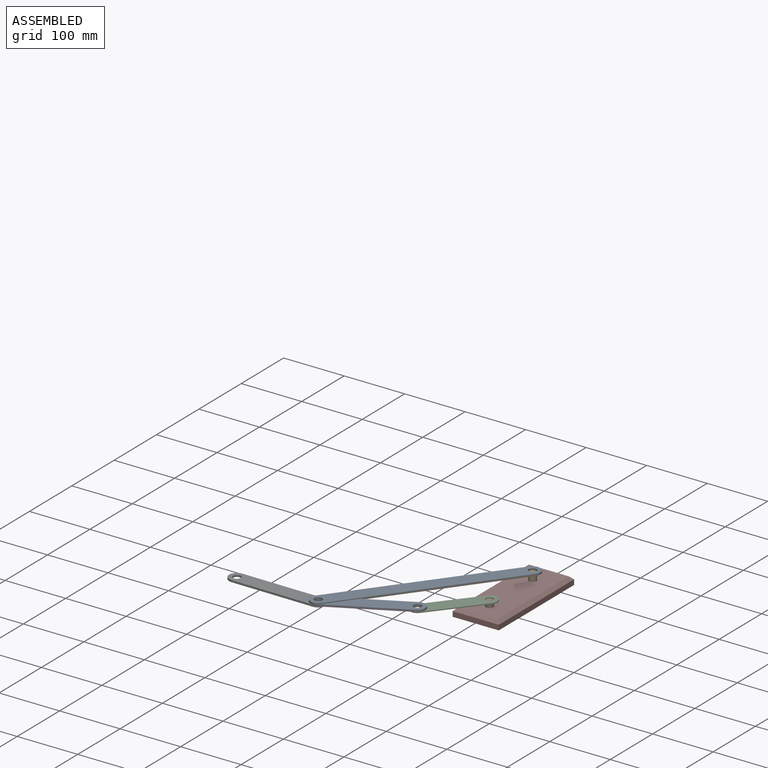
[diagram: assembled view]
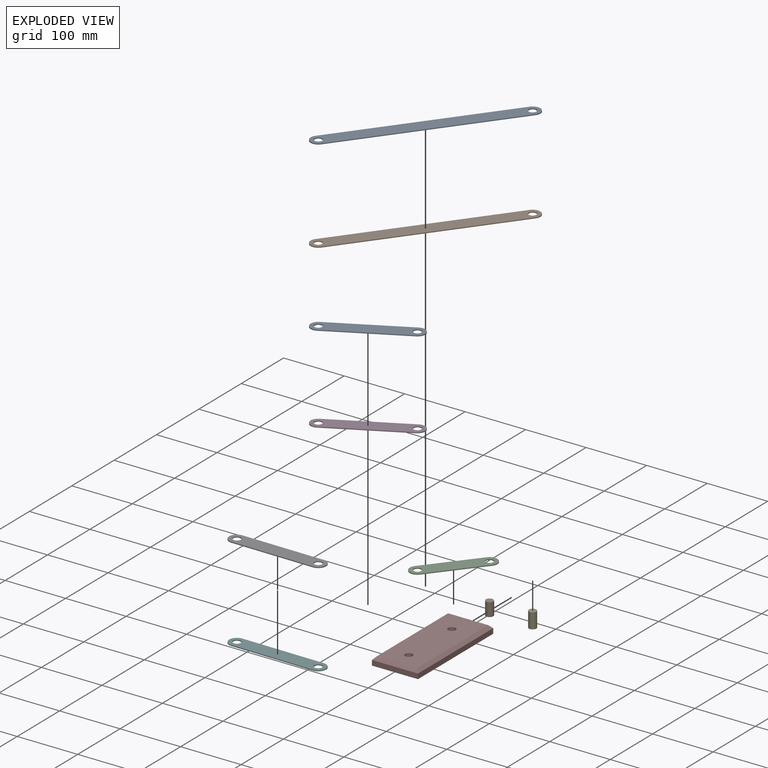
[diagram: exploded view]
GUIDED TOUR — MATED ASSEMBLY (Onshape document dc50b2e38b2e71167ab0dbe7, AutoMate assembly dc50b2e38b2e71167ab0dbe7_76890f38977dfb8077e2089f_dac8373fbd5c2e390059e451_default)

This assembly has 10 components, labeled P0..P9 below (a component is one placed occurrence of a part; the same part can appear more than once), held together by 12 mates. A mate is a constraint between two components; its type names the relative motion it leaves free:
  FASTENED — locks the two components together rigidly (no relative motion),
  REVOLUTE — leaves rotation about the listed axis free (a hinge).
Axis/direction vectors are unit vectors and 'through' points are millimeter coordinates, both in the assembly's world frame.

MATES
  1. REVOLUTE "Revolute 9": P0 <-> P6, axis (0.000, 0.000, -1.000) through (-184.07, -197.58, 25.40) mm
  2. FASTENED "Fastened 3": P9 <-> P7, direction (0.000, 0.000, -1.000) through (0.00, -56.24, 0.00) mm
  3. REVOLUTE "Revolute 4": P3 <-> P1, axis (0.000, 0.000, 1.000) through (-184.07, -197.58, 25.40) mm
  4. REVOLUTE "Revolute 2": P8 <-> P1, axis (0.000, 0.000, -1.000) through (0.00, 45.36, 26.99) mm
  5. REVOLUTE "Revolute 7": P3 <-> P0, axis (0.000, 0.000, 1.000) through (-63.76, -135.35, 25.40) mm
  6. REVOLUTE "Revolute 1": P4 <-> P1, axis (0.000, 0.000, 1.000) through (0.00, 45.36, 25.40) mm
  7. REVOLUTE "Revolute 10": P6 <-> P5, axis (0.000, 0.000, -1.000) through (-319.53, -196.35, 23.81) mm
  8. REVOLUTE "Revolute 5": P8 <-> P0, axis (0.000, 0.000, -1.000) through (-184.07, -197.58, 26.99) mm
  9. REVOLUTE "Revolute 6": P3 <-> P2, axis (0.000, 0.000, -1.000) through (-63.76, -135.35, 23.81) mm
  10. REVOLUTE "Revolute 8": P3 <-> P5, axis (0.000, 0.000, -1.000) through (-184.07, -197.58, 23.81) mm
  11. FASTENED "Fastened 2": P4 <-> P7, direction (0.000, 0.000, -1.000) through (0.00, 45.36, 0.00) mm
  12. REVOLUTE "Revolute 3": P2 <-> P9, axis (0.000, 0.000, -1.000) through (0.00, -56.24, 22.23) mm

ASSEMBLY ORDER
  1. P9 — the base component [order verified]
  2. P7 [order verified]
  3. P4 [order verified]
  4. P2 [order verified]
  5. P5 [order verified]
  6. P6 [order verified]
  7. P3 [order verified]
  8. P0 [order verified]
  9. P1 [order verified]
  10. P8 [order verified]
Order-tag legend:
  [order verified] — this step's position reverses a verified removal order: the component was checked to insert without passing through the ones already placed.

Of the 10 components, 10 carry the full construction recipe — the FeatureScript program that regenerates the part's solid from scratch; the rest are supplied as boundary geometry only.
Each toured component is shown spotlighted twice — in the assembled view, then in the exploded view, where a leader line traces a displaced component back to its assembled socket (saturated green if recipe-attached, orange if geometry-only; every other component desaturated gray) — followed by its recipe or geometry summary and the mates that hold it.
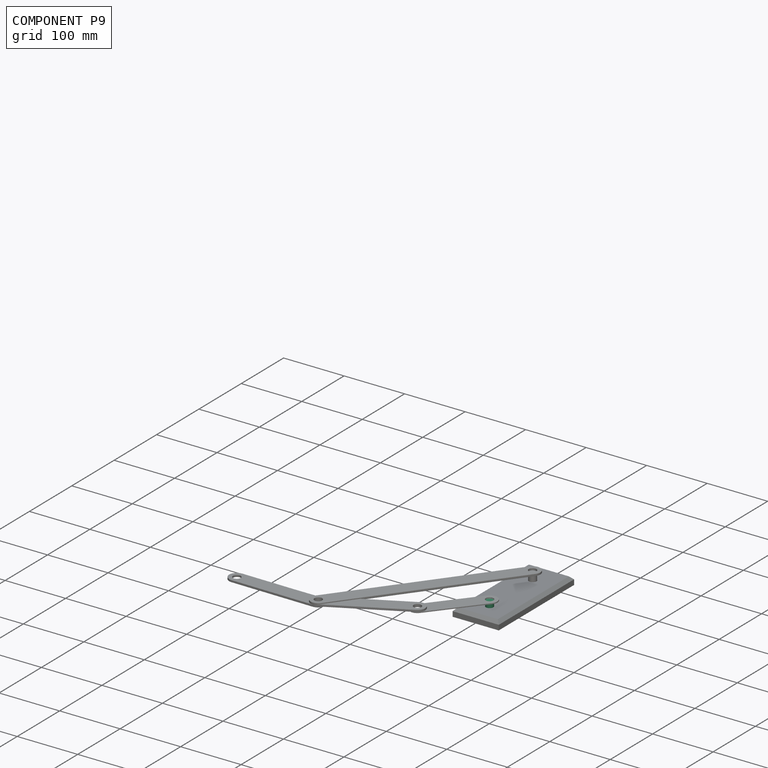
[diagram: component P9 — assembled]
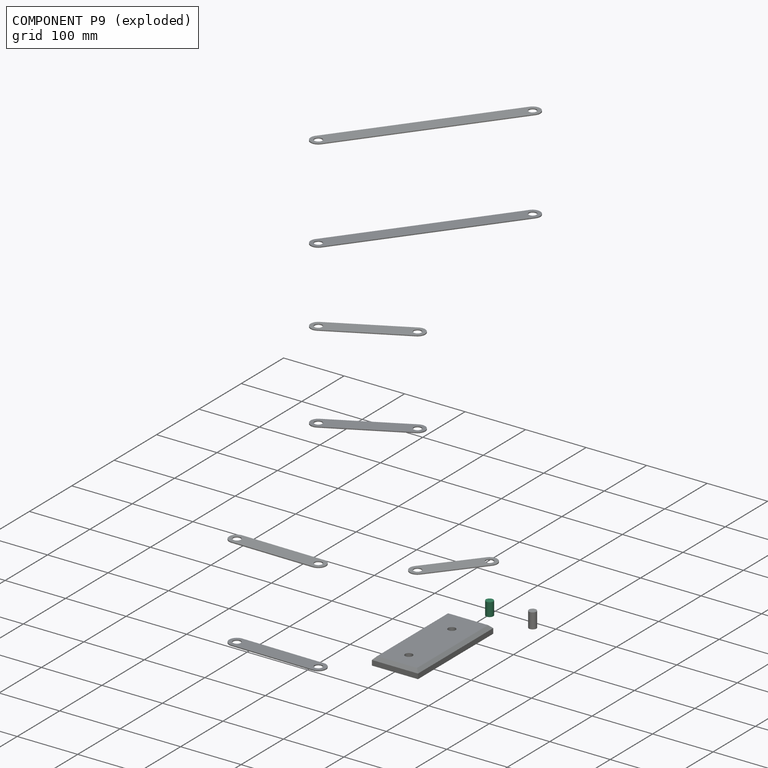
[diagram: component P9 — exploded]
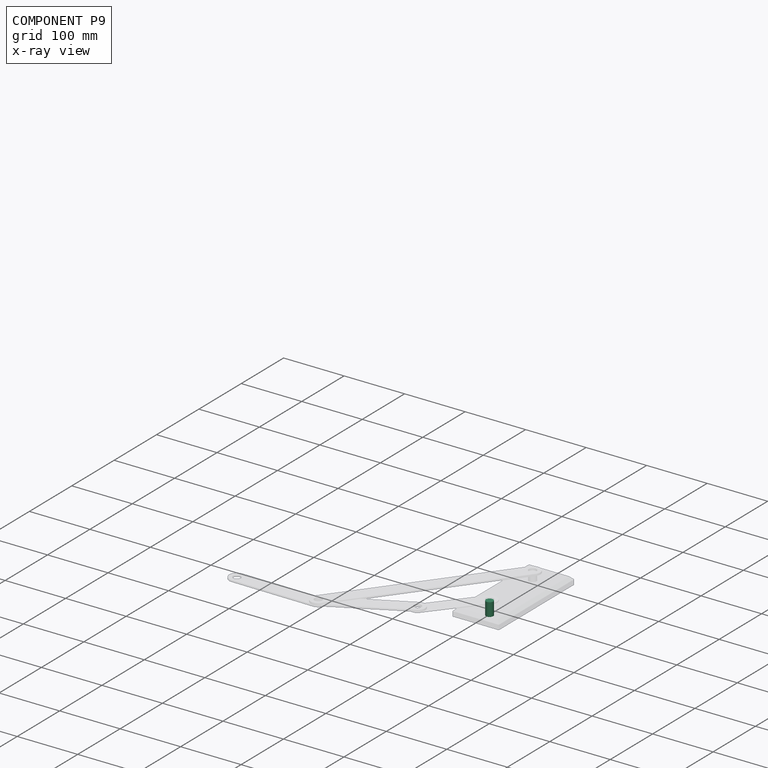
[diagram: component P9 — x-ray view]
COMPONENT P9 — recipe-attached (CADFS 00525712, mesh-verified: the recipe's output STEP matches this component's geometry to below the mesh-comparison resolution (tessellation chordal tolerance ~0.0422 mm)).
Held by: FASTENED mate "Fastened 3" to P7; REVOLUTE mate "Revolute 3" to P2.
Construction recipe (FeatureScript — the CAD program that rebuilds this solid; sketch coordinates are in the units given by the * unit suffixes, e.g. mm):

FeatureScript 1930;
import(path : "onshape/std/geometry.fs", version : "1930.0");
import(path : "onshape/std/common.fs", version : "1930.0");
const mm = millimeter;
const VERTEX = EntityType.VERTEX;
const EDGE = EntityType.EDGE;
const FACE = EntityType.FACE;
const BODY = EntityType.BODY;
function v(x, y){return vector(x, y);}
function OD(order){return orderDisambiguation(order);}
function OSD(set){return originalSetDisambiguation(set);}
function TD(topology){return topologyDisambiguation(topology);}
function TDD(query){return trueDependencyDisambiguation(query);}
function sQuery(a, b, c) {return sketchEntityQuery(a, b, c);}

annotation { "Feature Type Name" : "Feature", "Feature Type Description" : "" }
export const myFeature = defineFeature(function(context is Context, id is Id, definition is map)
    precondition{}
    {
        {
            var Q0;
            Q0=qCreatedBy(makeId("Top.planeOp"),FACE);
            var sketch = newSketch(context, id + "F0", { "sketchPlane" : qUnion([Q0])});
            skCircle(sketch, "E0", {"center": v(0, 0) * mm, "radius": 6.1 * mm});
            skSolve(sketch);
        }
        {
            var Q0;
            Q0 = qSketchRegion(id + "F0", true);
            extrude(context, id + "F1", {"entities" : qUnion([Q0]), "depth" : 22.22 * mm, "offsetDistance" : 25.4 * mm});
        }
    });
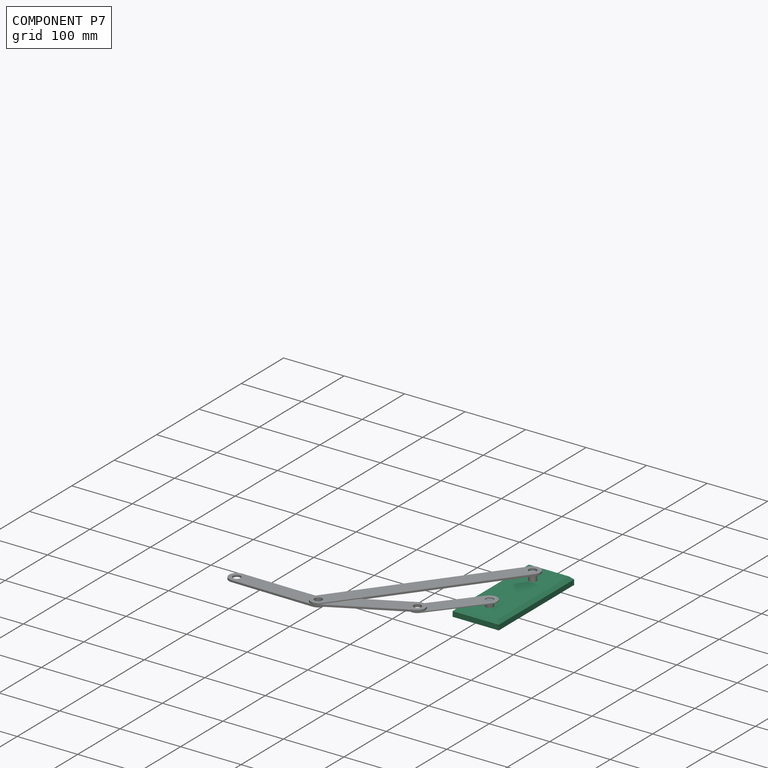
[diagram: component P7 — assembled]
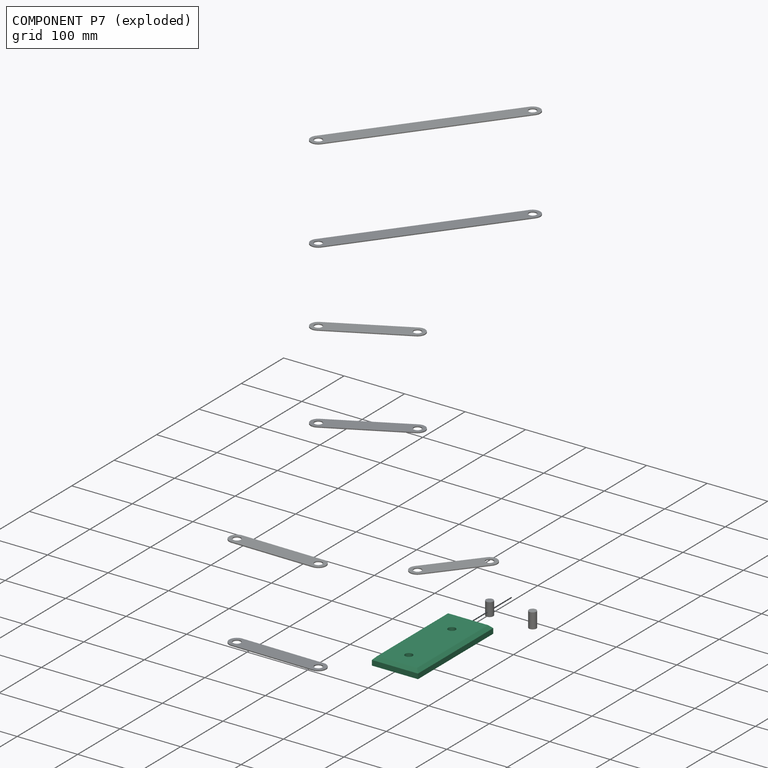
[diagram: component P7 — exploded]
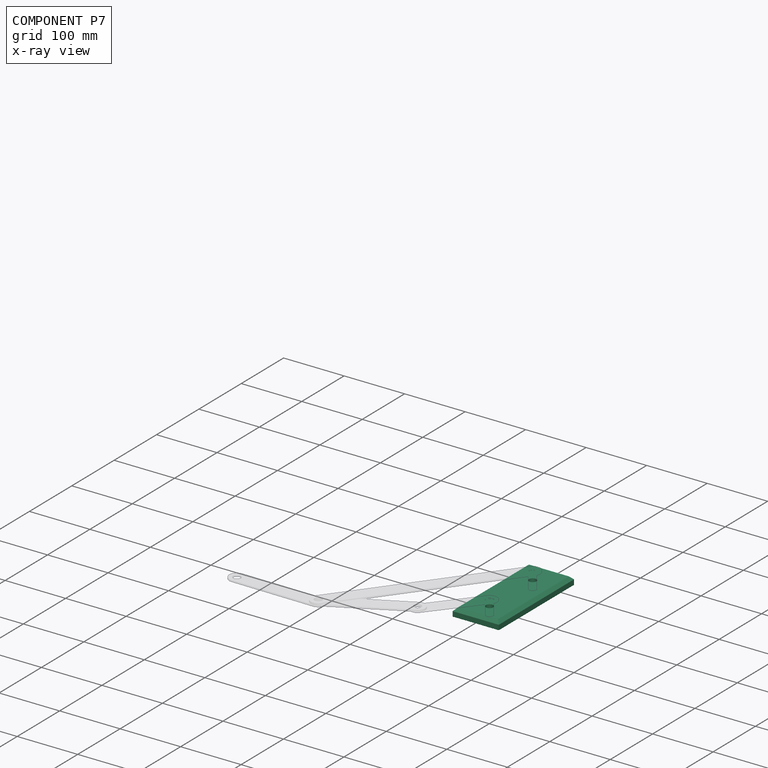
[diagram: component P7 — x-ray view]
COMPONENT P7 — recipe-attached (CADFS 00525710, mesh-verified: the recipe's output STEP matches this component's geometry to below the mesh-comparison resolution (tessellation chordal tolerance ~0.291 mm)).
Held by: FASTENED mate "Fastened 3" to P9; FASTENED mate "Fastened 2" to P4.
Construction recipe (FeatureScript — the CAD program that rebuilds this solid; sketch coordinates are in the units given by the * unit suffixes, e.g. mm):

FeatureScript 1930;
import(path : "onshape/std/geometry.fs", version : "1930.0");
import(path : "onshape/std/common.fs", version : "1930.0");
const mm = millimeter;
const VERTEX = EntityType.VERTEX;
const EDGE = EntityType.EDGE;
const FACE = EntityType.FACE;
const BODY = EntityType.BODY;
function v(x, y){return vector(x, y);}
function OD(order){return orderDisambiguation(order);}
function OSD(set){return originalSetDisambiguation(set);}
function TD(topology){return topologyDisambiguation(topology);}
function TDD(query){return trueDependencyDisambiguation(query);}
function sQuery(a, b, c) {return sketchEntityQuery(a, b, c);}

annotation { "Feature Type Name" : "Feature", "Feature Type Description" : "" }
export const myFeature = defineFeature(function(context is Context, id is Id, definition is map)
    precondition{}
    {
        {
            var Q0;
            Q0=qCreatedBy(makeId("Top.planeOp"),FACE);
            var sketch = newSketch(context, id + "F0", { "sketchPlane" : qUnion([Q0])});
            skLineSegment(sketch, "E0.bottom", {"start": v(-38.1, 88.9) * mm, "end": v(38.1, 88.9) * mm});
            skLineSegment(sketch, "E0.top", {"start": v(-38.1, -88.9) * mm, "end": v(38.1, -88.9) * mm});
            skLineSegment(sketch, "E0.left", {"start": v(-38.1, 88.9) * mm, "end": v(-38.1, -88.9) * mm});
            skLineSegment(sketch, "E0.right", {"start": v(38.1, 88.9) * mm, "end": v(38.1, -88.9) * mm});
            skPoint(sketch, "E0.middle", {"position": v(0, 0) * mm});
            skLineSegment(sketch, "E1", {"start": v(0, 88.9) * mm, "end": v(0, -88.9) * mm});
            skCircle(sketch, "E2", {"center": v(0, -56.15) * mm, "radius": 6.22 * mm});
            skCircle(sketch, "E3", {"center": v(0, 45.45) * mm, "radius": 6.22 * mm});
            skSolve(sketch);
        }
        {
            var Q0;
            {var subQ0=sQuery(id+"F0.wireOp",EDGE,"E0.right");Q0=makeQuery(id+"F0.imprint","IMPRINT",FACE,{"disambiguationData":[TD([[makeQuery(id+"F0.imprint","IMPRINT",EDGE,{"derivedFrom":subQ0}),-1.0]])]});}
            var Q1;
            {var subQ5=sQuery(id+"F0.wireOp",EDGE,"E0.left");Q1=makeQuery(id+"F0.imprint","IMPRINT",FACE,{"disambiguationData":[TD([[makeQuery(id+"F0.imprint","IMPRINT",EDGE,{"derivedFrom":subQ5}),1.0]])]});}
            extrude(context, id + "F1", {"entities" : qUnion([Q0, Q1]), "depth" : 13.46 * mm, "offsetDistance" : 25.4 * mm});
        }
        {
            var Q0;
            Q0=makeQuery(id+"F1.opExtrude","CAP_EDGE",EDGE,{"disambiguationData":[OSD([sQuery(id+"F0.wireOp",EDGE,"E0.left")])],"isStart":false});
            var Q1;
            Q1=makeQuery(id+"F1.opExtrude","CAP_EDGE",EDGE,{"disambiguationData":[OSD([sQuery(id+"F0.wireOp",EDGE,"E0.right")])],"isStart":false});
            var Q2;
            Q2=makeQuery(id+"F1.opExtrude","CAP_EDGE",EDGE,{"disambiguationData":[OSD([sQuery(id+"F0.wireOp",EDGE,"E0.bottom")])],"isStart":false});
            var Q3;
            Q3=makeQuery(id+"F1.opExtrude","CAP_EDGE",EDGE,{"disambiguationData":[OSD([sQuery(id+"F0.wireOp",EDGE,"E0.top")])],"isStart":false});
            chamfer(context, id + "F2", {"entities" : qUnion([Q0, Q1, Q2, Q3]), "width" : 5.08 * mm, "tangentPropagation" : true});
        }
    });
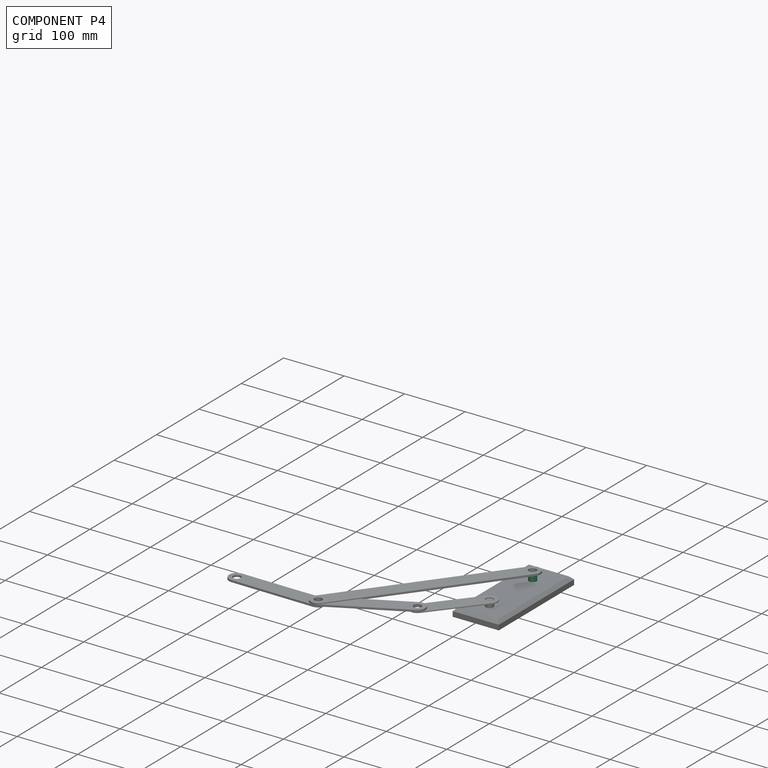
[diagram: component P4 — assembled]
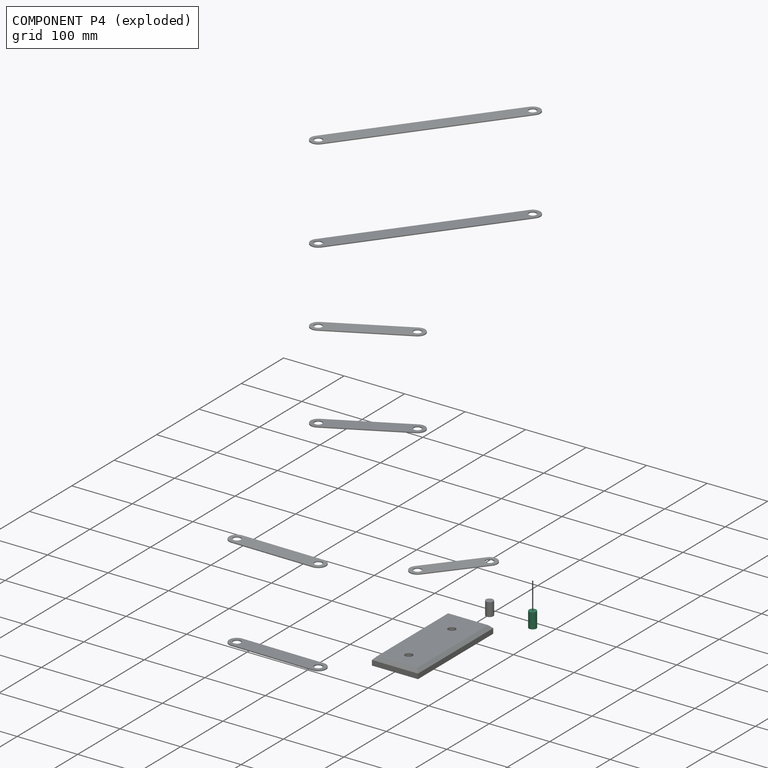
[diagram: component P4 — exploded]
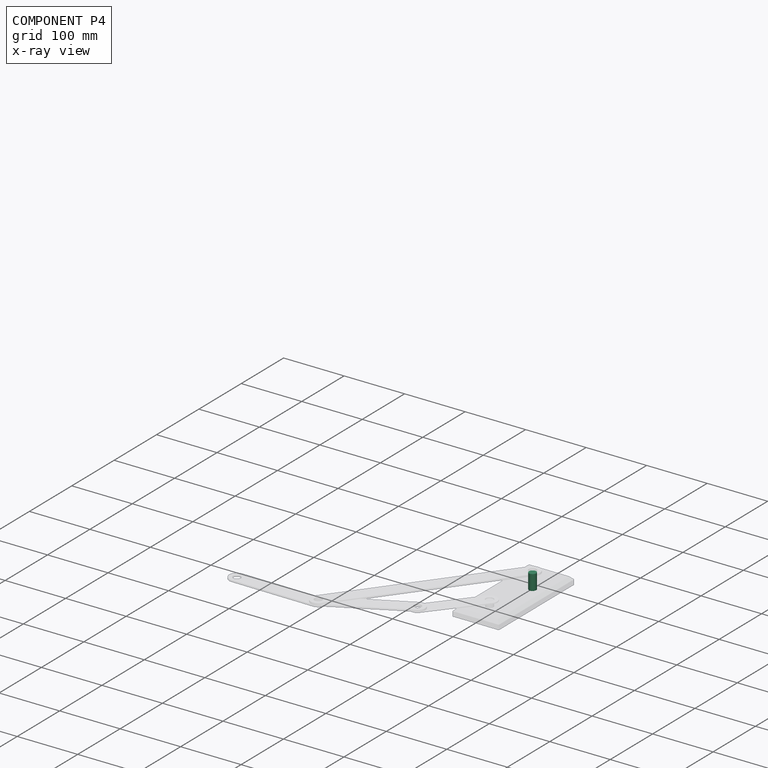
[diagram: component P4 — x-ray view]
COMPONENT P4 — recipe-attached (CADFS 00525711, mesh-verified: the recipe's output STEP matches this component's geometry to below the mesh-comparison resolution (tessellation chordal tolerance ~0.046 mm)).
Held by: REVOLUTE mate "Revolute 1" to P1; FASTENED mate "Fastened 2" to P7.
Construction recipe (FeatureScript — the CAD program that rebuilds this solid; sketch coordinates are in the units given by the * unit suffixes, e.g. mm):

FeatureScript 1930;
import(path : "onshape/std/geometry.fs", version : "1930.0");
import(path : "onshape/std/common.fs", version : "1930.0");
const mm = millimeter;
const VERTEX = EntityType.VERTEX;
const EDGE = EntityType.EDGE;
const FACE = EntityType.FACE;
const BODY = EntityType.BODY;
function v(x, y){return vector(x, y);}
function OD(order){return orderDisambiguation(order);}
function OSD(set){return originalSetDisambiguation(set);}
function TD(topology){return topologyDisambiguation(topology);}
function TDD(query){return trueDependencyDisambiguation(query);}
function sQuery(a, b, c) {return sketchEntityQuery(a, b, c);}

annotation { "Feature Type Name" : "Feature", "Feature Type Description" : "" }
export const myFeature = defineFeature(function(context is Context, id is Id, definition is map)
    precondition{}
    {
        {
            var Q0;
            Q0=qCreatedBy(makeId("Top.planeOp"),FACE);
            var sketch = newSketch(context, id + "F0", { "sketchPlane" : qUnion([Q0])});
            skCircle(sketch, "E0", {"center": v(0, 0) * mm, "radius": 6.1 * mm});
            skSolve(sketch);
        }
        {
            var Q0;
            Q0 = qSketchRegion(id + "F0", true);
            extrude(context, id + "F1", {"entities" : qUnion([Q0]), "depth" : 25.4 * mm, "offsetDistance" : 25.4 * mm});
        }
    });
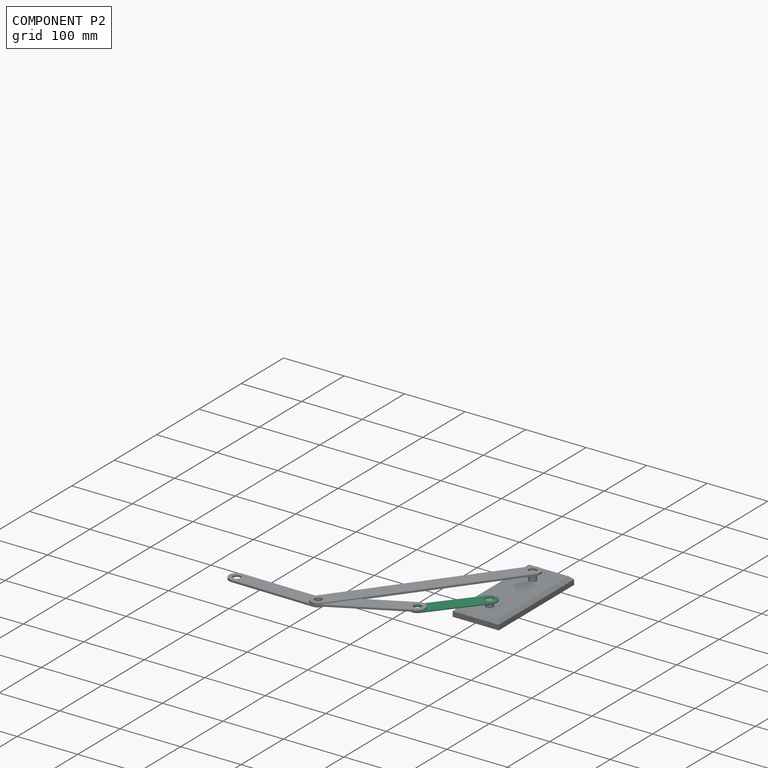
[diagram: component P2 — assembled]
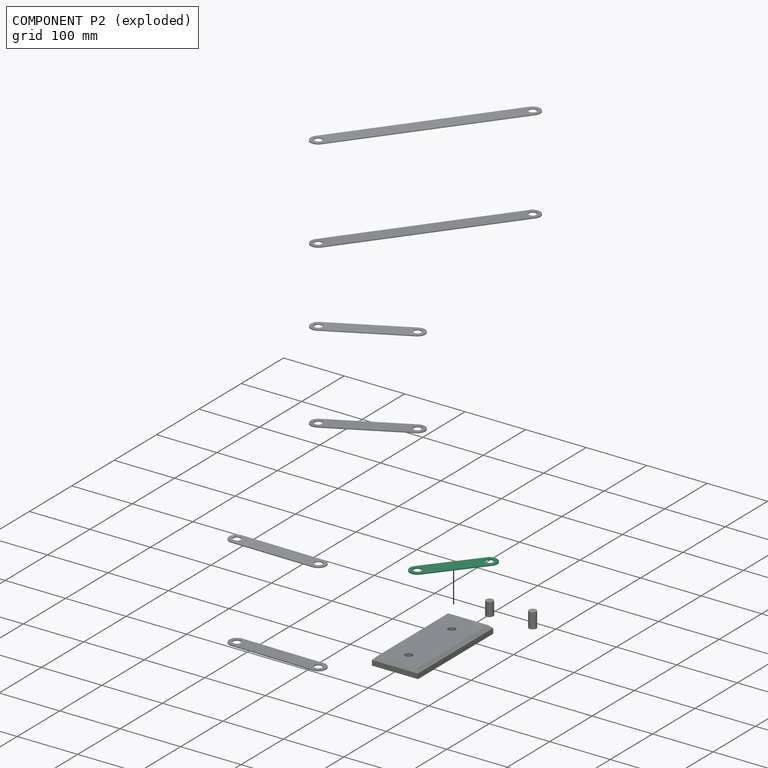
[diagram: component P2 — exploded]
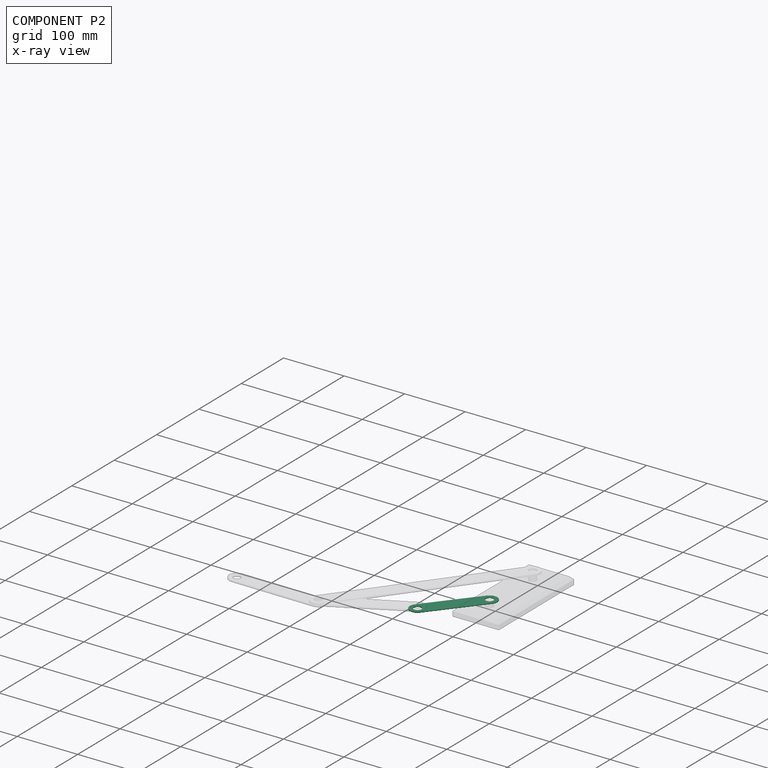
[diagram: component P2 — x-ray view]
COMPONENT P2 — recipe-attached (CADFS 00525709, mesh-verified: the recipe's output STEP matches this component's geometry to below the mesh-comparison resolution (tessellation chordal tolerance ~0.194 mm)).
Held by: REVOLUTE mate "Revolute 6" to P3; REVOLUTE mate "Revolute 3" to P9.
Construction recipe (FeatureScript — the CAD program that rebuilds this solid; sketch coordinates are in the units given by the * unit suffixes, e.g. mm):

FeatureScript 1930;
import(path : "onshape/std/geometry.fs", version : "1930.0");
import(path : "onshape/std/common.fs", version : "1930.0");
const mm = millimeter;
const VERTEX = EntityType.VERTEX;
const EDGE = EntityType.EDGE;
const FACE = EntityType.FACE;
const BODY = EntityType.BODY;
function v(x, y){return vector(x, y);}
function OD(order){return orderDisambiguation(order);}
function OSD(set){return originalSetDisambiguation(set);}
function TD(topology){return topologyDisambiguation(topology);}
function TDD(query){return trueDependencyDisambiguation(query);}
function sQuery(a, b, c) {return sketchEntityQuery(a, b, c);}

annotation { "Feature Type Name" : "Feature", "Feature Type Description" : "" }
export const myFeature = defineFeature(function(context is Context, id is Id, definition is map)
    precondition{}
    {
        {
            var Q0;
            Q0=qCreatedBy(makeId("Top.planeOp"),FACE);
            var sketch = newSketch(context, id + "F0", { "sketchPlane" : qUnion([Q0])});
            skLineSegment(sketch, "E0.bottom", {"start": v(-12.7, 50.8) * mm, "end": v(12.7, 50.8) * mm});
            skLineSegment(sketch, "E0.top", {"start": v(-12.7, -50.8) * mm, "end": v(12.7, -50.8) * mm});
            skLineSegment(sketch, "E0.left", {"start": v(-12.7, 50.8) * mm, "end": v(-12.7, -50.8) * mm});
            skLineSegment(sketch, "E0.right", {"start": v(12.7, 50.8) * mm, "end": v(12.7, -50.8) * mm});
            skPoint(sketch, "E0.middle", {"position": v(0, 0) * mm});
            skArc(sketch, "E1", {"start": v(12.7, 50.8) * mm, "mid": v(0, 63.5) * mm, "end": v(-12.7, 50.8) * mm});
            skArc(sketch, "E2", {"start": v(-12.7, -50.8) * mm, "mid": v(0, -63.5) * mm, "end": v(12.7, -50.8) * mm});
            skLineSegment(sketch, "E3", {"start": v(0, 63.5) * mm, "end": v(0, -63.5) * mm});
            skCircle(sketch, "E4", {"center": v(0, 50.8) * mm, "radius": 6.35 * mm});
            skCircle(sketch, "E5", {"center": v(0, -50.8) * mm, "radius": 6.35 * mm});
            skSolve(sketch);
        }
        {
            var Q0;
            Q0 = qSketchRegion(id + "F0", true);
            extrude(context, id + "F1", {"entities" : qUnion([Q0]), "depth" : 1.59 * mm, "offsetDistance" : 25.4 * mm});
        }
    });
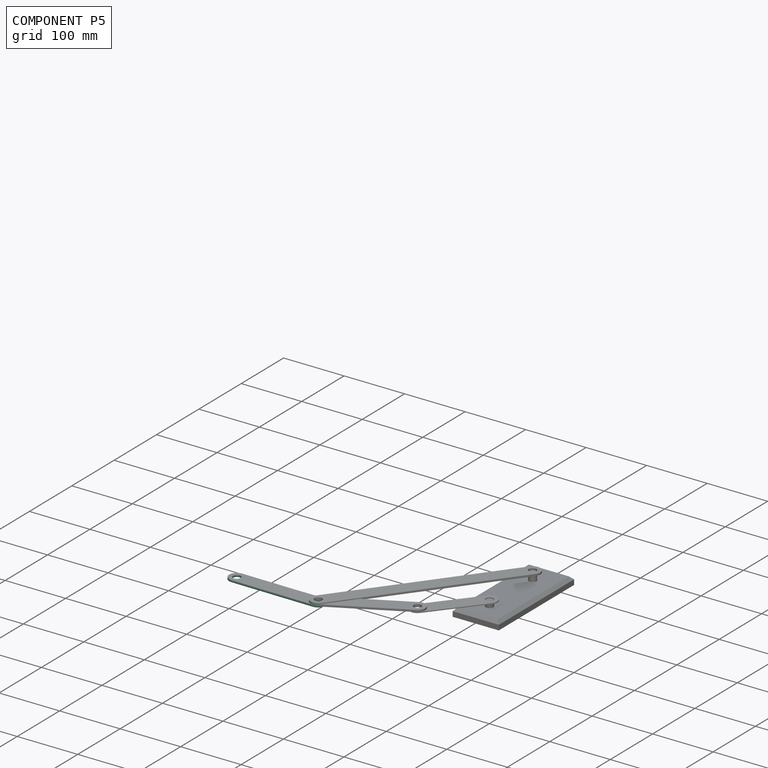
[diagram: component P5 — assembled]
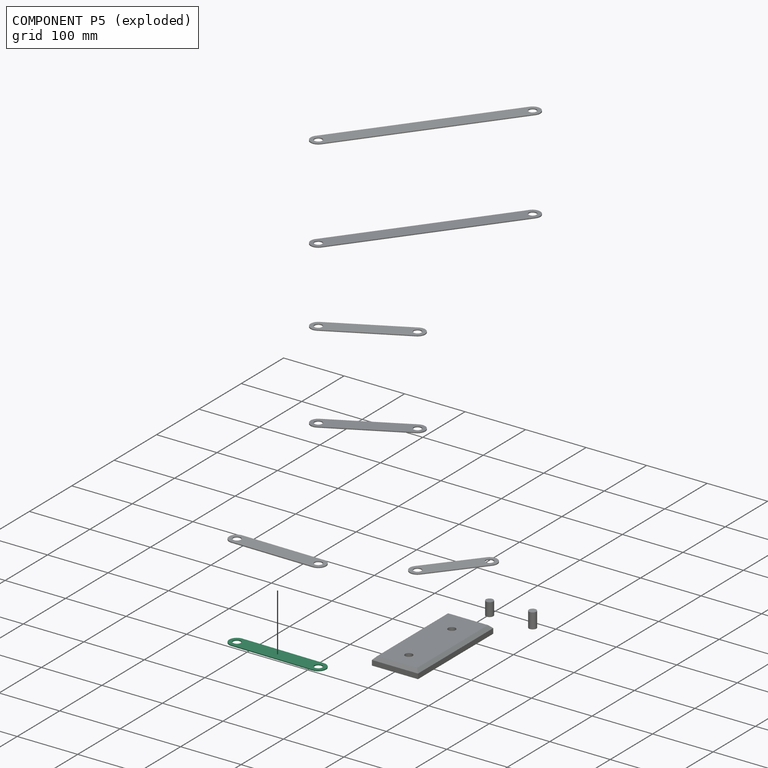
[diagram: component P5 — exploded]
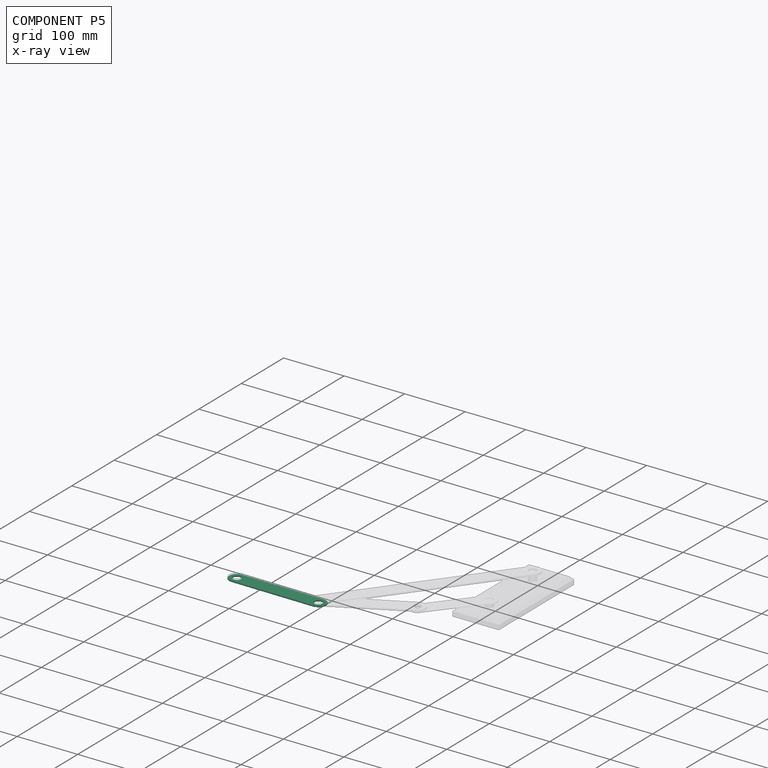
[diagram: component P5 — x-ray view]
COMPONENT P5 — same part as P0 (CADFS 00525708); its construction recipe is shown at P0.
Held by: REVOLUTE mate "Revolute 10" to P6; REVOLUTE mate "Revolute 8" to P3.
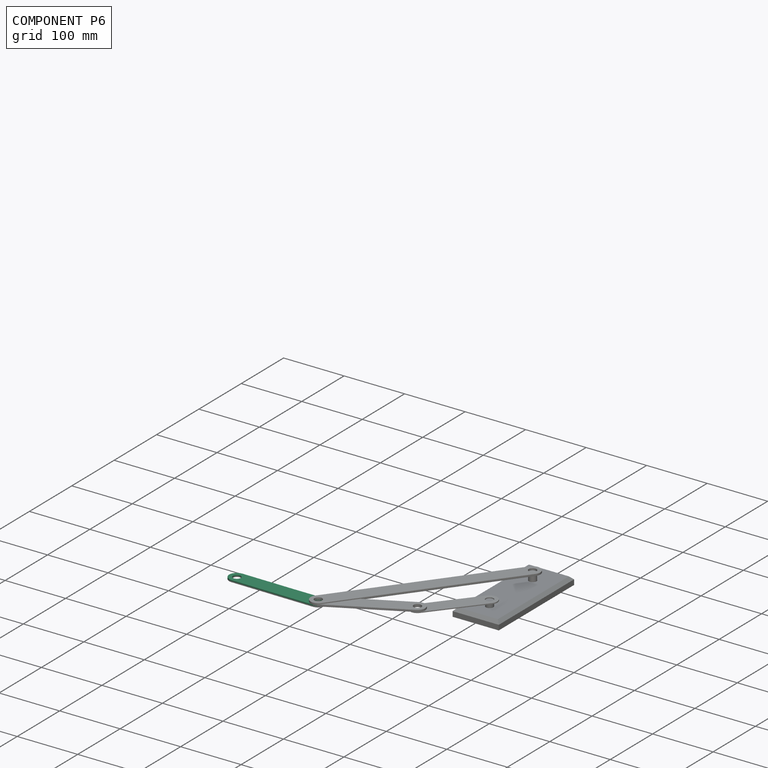
[diagram: component P6 — assembled]
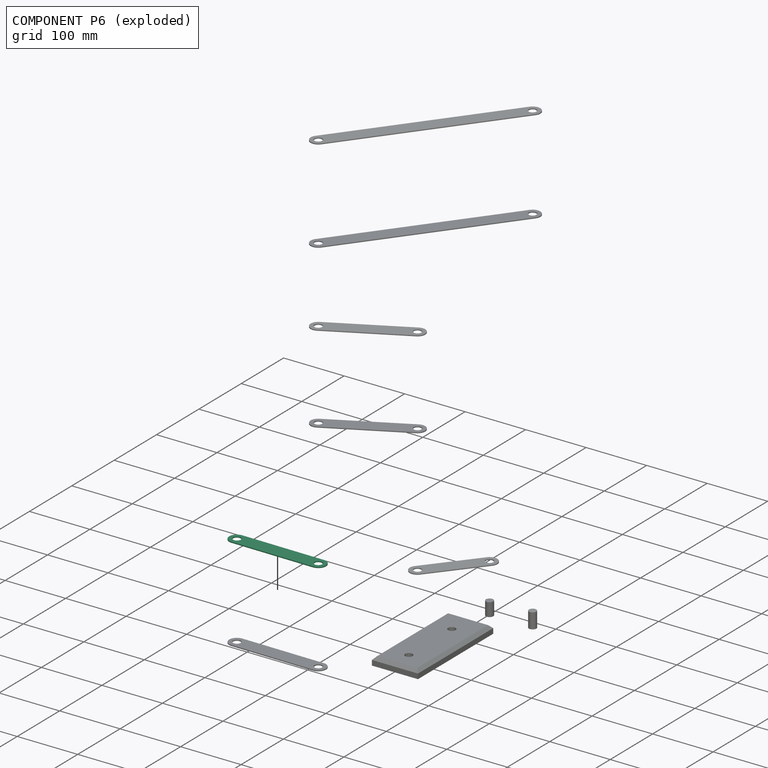
[diagram: component P6 — exploded]
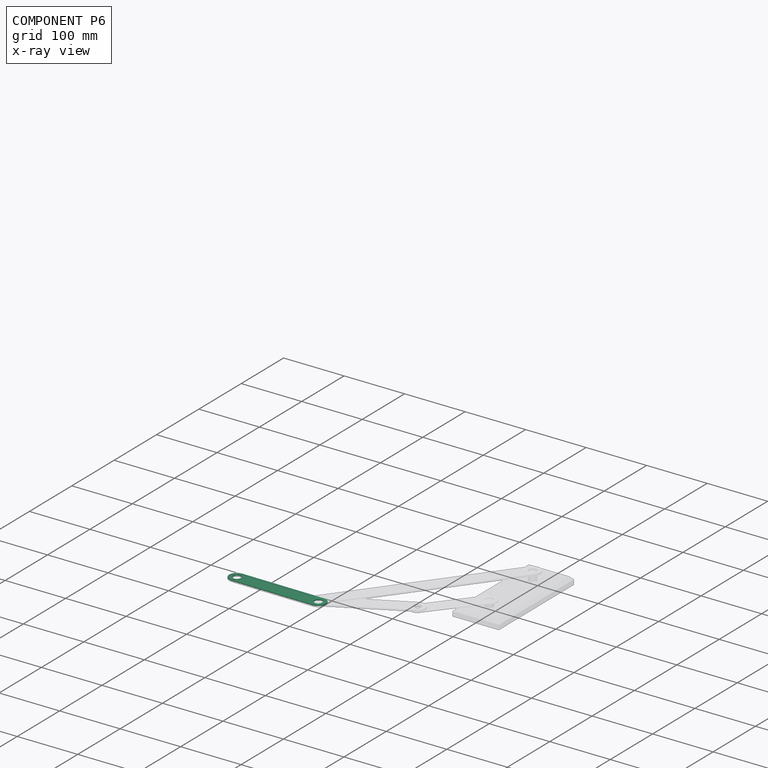
[diagram: component P6 — x-ray view]
COMPONENT P6 — same part as P0 (CADFS 00525708); its construction recipe is shown at P0.
Held by: REVOLUTE mate "Revolute 9" to P0; REVOLUTE mate "Revolute 10" to P5.
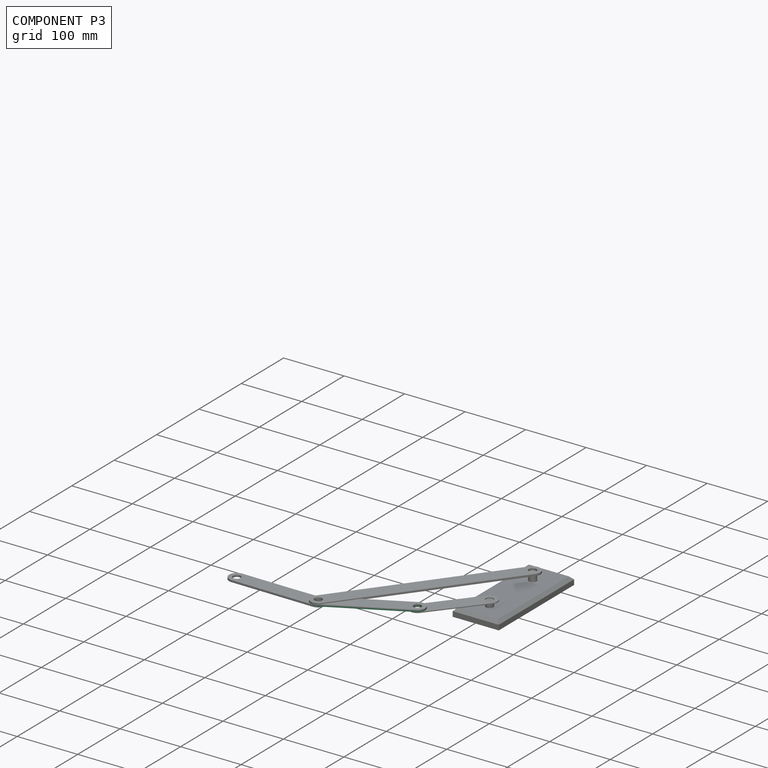
[diagram: component P3 — assembled]
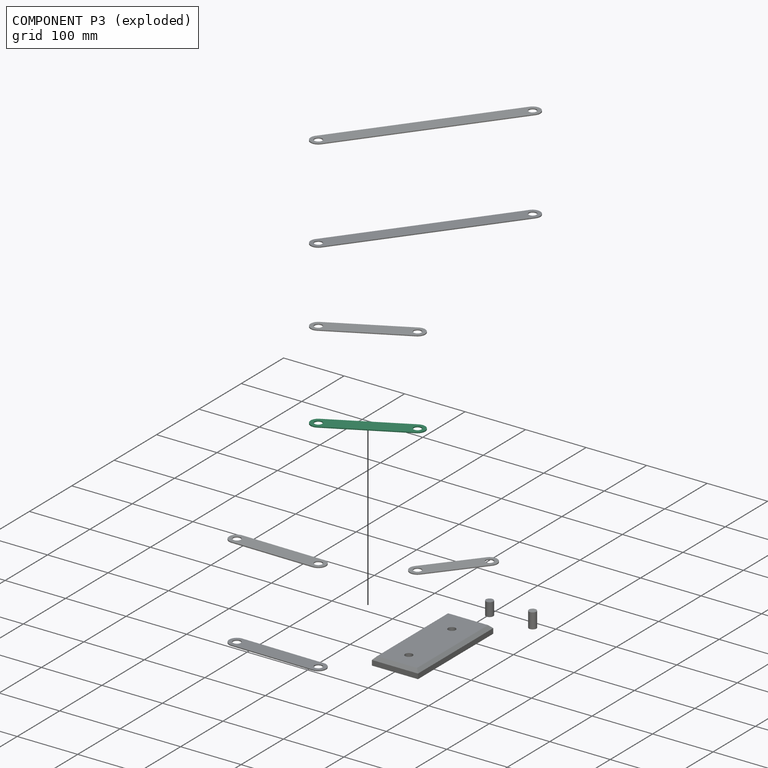
[diagram: component P3 — exploded]
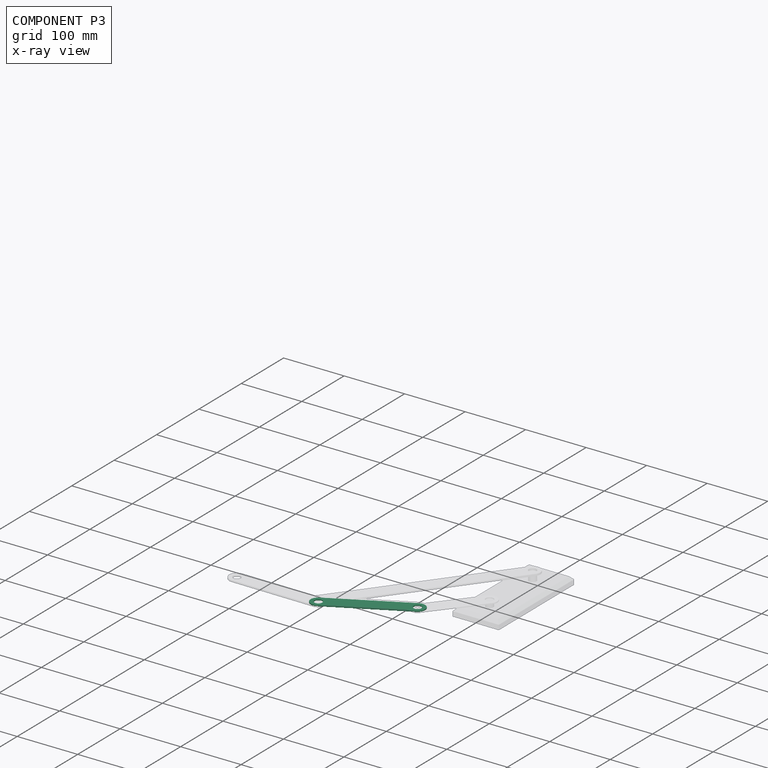
[diagram: component P3 — x-ray view]
COMPONENT P3 — same part as P0 (CADFS 00525708); its construction recipe is shown at P0.
Held by: REVOLUTE mate "Revolute 4" to P1; REVOLUTE mate "Revolute 7" to P0; REVOLUTE mate "Revolute 6" to P2; REVOLUTE mate "Revolute 8" to P5.
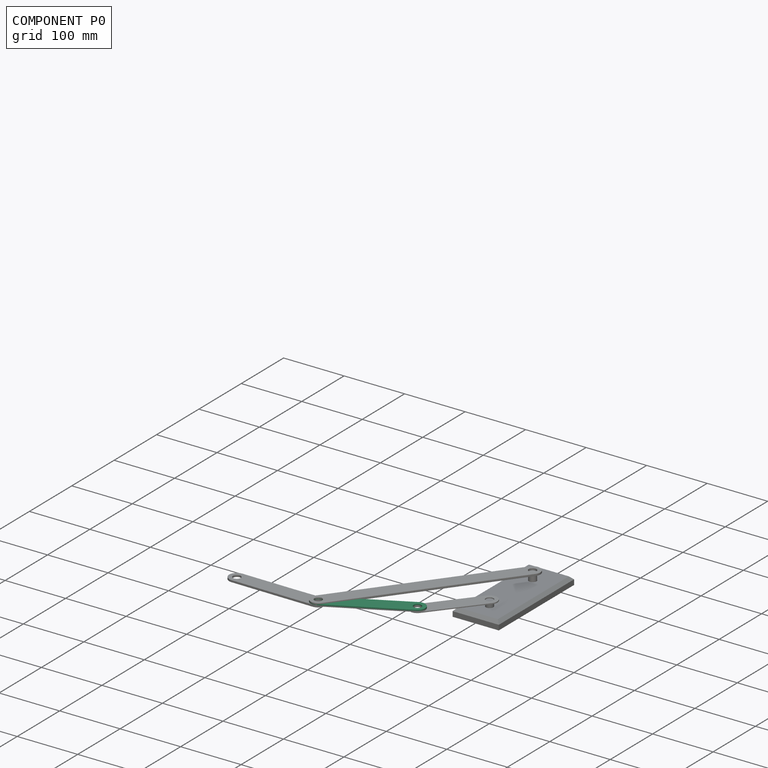
[diagram: component P0 — assembled]
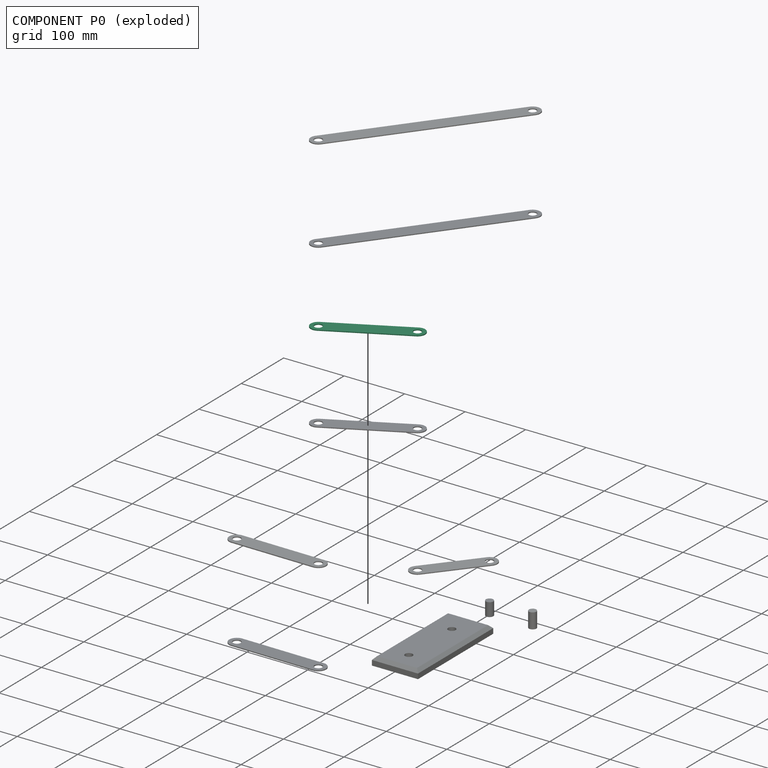
[diagram: component P0 — exploded]
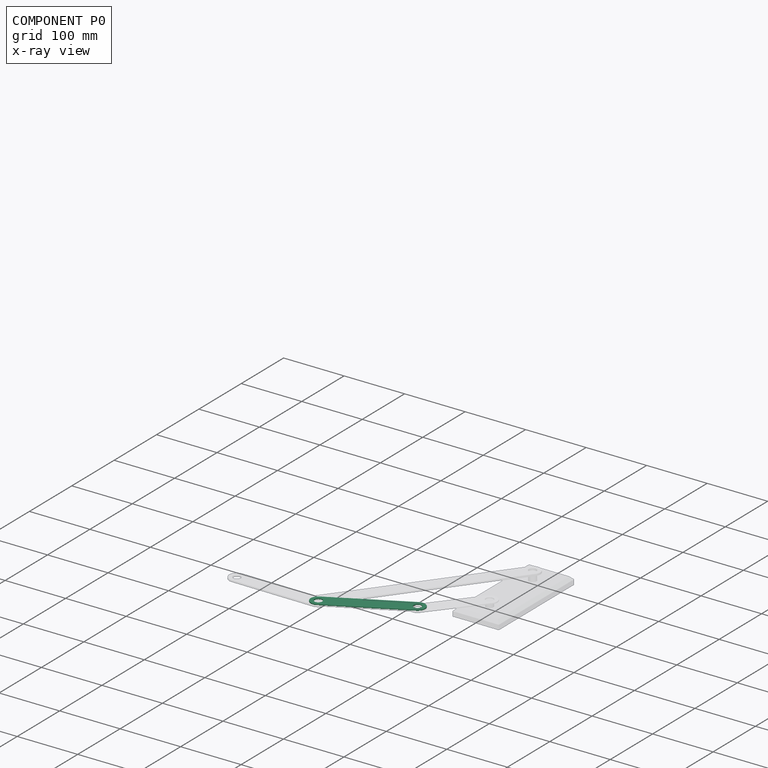
[diagram: component P0 — x-ray view]
COMPONENT P0 — recipe-attached (CADFS 00525708, mesh-verified: the recipe's output STEP matches this component's geometry to below the mesh-comparison resolution (tessellation chordal tolerance ~0.244 mm)).
Held by: REVOLUTE mate "Revolute 9" to P6; REVOLUTE mate "Revolute 7" to P3; REVOLUTE mate "Revolute 5" to P8.
Construction recipe (FeatureScript — the CAD program that rebuilds this solid; sketch coordinates are in the units given by the * unit suffixes, e.g. mm):

FeatureScript 1930;
import(path : "onshape/std/geometry.fs", version : "1930.0");
import(path : "onshape/std/common.fs", version : "1930.0");
const mm = millimeter;
const VERTEX = EntityType.VERTEX;
const EDGE = EntityType.EDGE;
const FACE = EntityType.FACE;
const BODY = EntityType.BODY;
function v(x, y){return vector(x, y);}
function OD(order){return orderDisambiguation(order);}
function OSD(set){return originalSetDisambiguation(set);}
function TD(topology){return topologyDisambiguation(topology);}
function TDD(query){return trueDependencyDisambiguation(query);}
function sQuery(a, b, c) {return sketchEntityQuery(a, b, c);}

annotation { "Feature Type Name" : "Feature", "Feature Type Description" : "" }
export const myFeature = defineFeature(function(context is Context, id is Id, definition is map)
    precondition{}
    {
        {
            var Q0;
            Q0=qCreatedBy(makeId("Top.planeOp"),FACE);
            var sketch = newSketch(context, id + "F0", { "sketchPlane" : qUnion([Q0])});
            skLineSegment(sketch, "E0.bottom", {"start": v(-12.7, 67.73) * mm, "end": v(12.7, 67.73) * mm});
            skLineSegment(sketch, "E0.top", {"start": v(-12.7, -67.73) * mm, "end": v(12.7, -67.73) * mm});
            skLineSegment(sketch, "E0.left", {"start": v(-12.7, 67.73) * mm, "end": v(-12.7, -67.73) * mm});
            skLineSegment(sketch, "E0.right", {"start": v(12.7, 67.73) * mm, "end": v(12.7, -67.73) * mm});
            skPoint(sketch, "E0.middle", {"position": v(0, 0) * mm});
            skArc(sketch, "E1", {"start": v(12.7, 67.73) * mm, "mid": v(0, 80.43) * mm, "end": v(-12.7, 67.73) * mm});
            skArc(sketch, "E2", {"start": v(-12.7, -67.73) * mm, "mid": v(0, -80.43) * mm, "end": v(12.7, -67.73) * mm});
            skLineSegment(sketch, "E3", {"start": v(0, 80.43) * mm, "end": v(0, -80.43) * mm});
            skCircle(sketch, "E4", {"center": v(0, 67.73) * mm, "radius": 6.35 * mm});
            skCircle(sketch, "E5", {"center": v(0, -67.73) * mm, "radius": 6.35 * mm});
            skLineSegment(sketch, "E6", {"start": v(0, 74.08) * mm, "end": v(0, -74.08) * mm});
            skSolve(sketch);
        }
        {
            var Q0;
            Q0 = qSketchRegion(id + "F0", true);
            extrude(context, id + "F1", {"entities" : qUnion([Q0]), "depth" : 1.59 * mm, "offsetDistance" : 25.4 * mm});
        }
    });
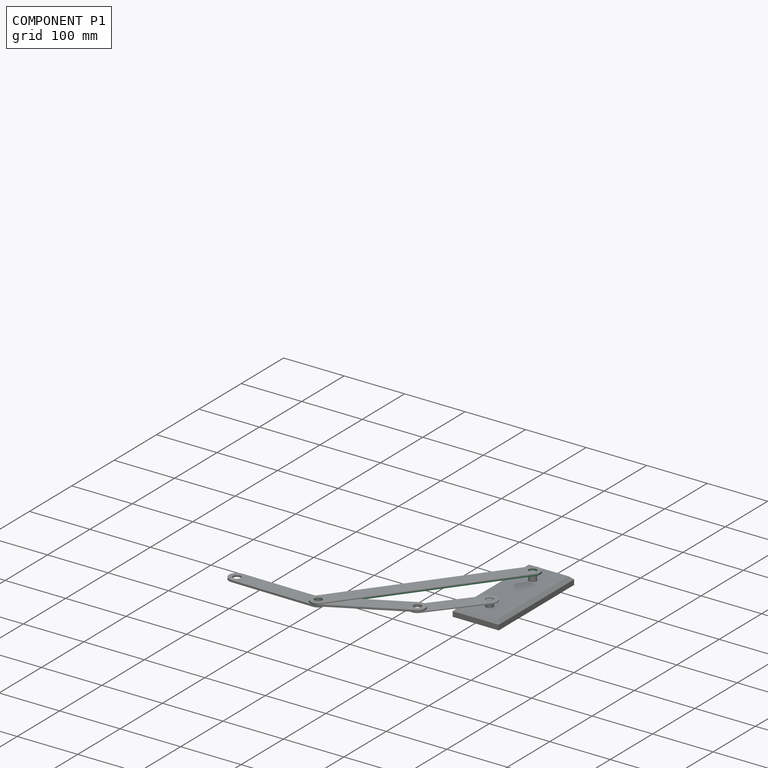
[diagram: component P1 — assembled]
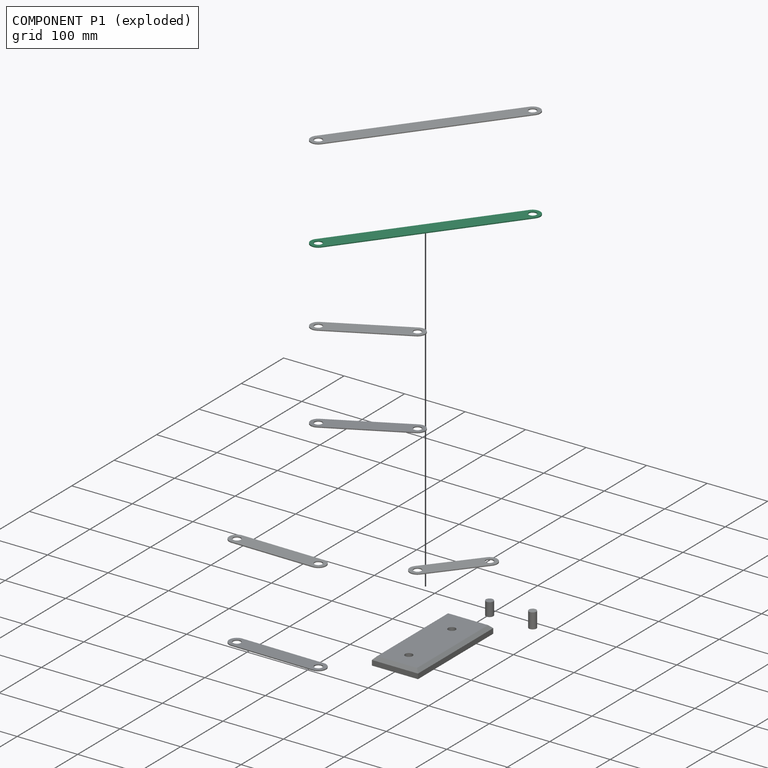
[diagram: component P1 — exploded]
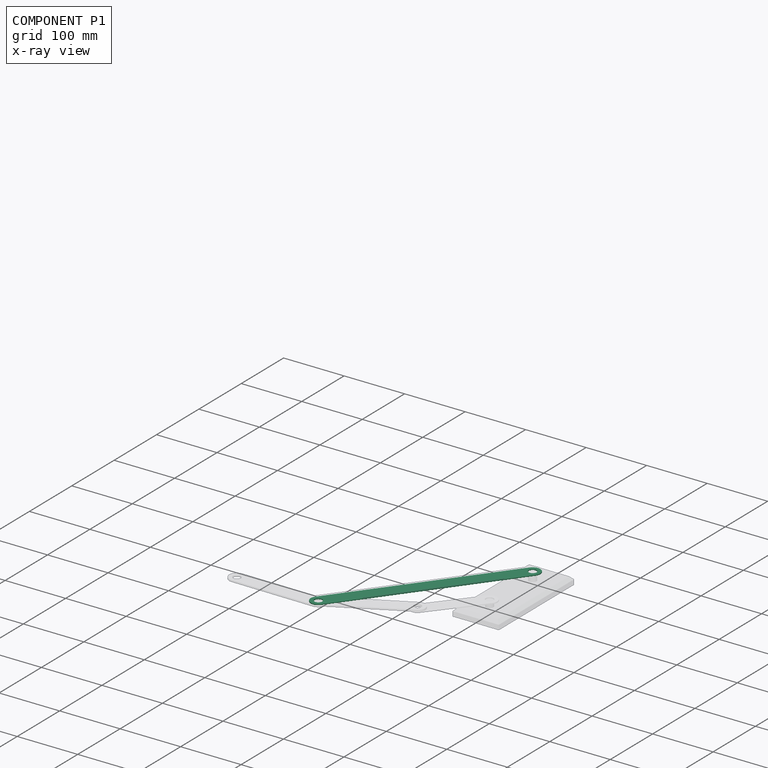
[diagram: component P1 — x-ray view]
COMPONENT P1 — recipe-attached (CADFS 00525707, mesh-verified: the recipe's output STEP matches this component's geometry to below the mesh-comparison resolution (tessellation chordal tolerance ~0.497 mm)).
Held by: REVOLUTE mate "Revolute 4" to P3; REVOLUTE mate "Revolute 2" to P8; REVOLUTE mate "Revolute 1" to P4.
Construction recipe (FeatureScript — the CAD program that rebuilds this solid; sketch coordinates are in the units given by the * unit suffixes, e.g. mm):

FeatureScript 1930;
import(path : "onshape/std/geometry.fs", version : "1930.0");
import(path : "onshape/std/common.fs", version : "1930.0");
const mm = millimeter;
const VERTEX = EntityType.VERTEX;
const EDGE = EntityType.EDGE;
const FACE = EntityType.FACE;
const BODY = EntityType.BODY;
function v(x, y){return vector(x, y);}
function OD(order){return orderDisambiguation(order);}
function OSD(set){return originalSetDisambiguation(set);}
function TD(topology){return topologyDisambiguation(topology);}
function TDD(query){return trueDependencyDisambiguation(query);}
function sQuery(a, b, c) {return sketchEntityQuery(a, b, c);}

annotation { "Feature Type Name" : "Feature", "Feature Type Description" : "" }
export const myFeature = defineFeature(function(context is Context, id is Id, definition is map)
    precondition{}
    {
        {
            var Q0;
            Q0=qCreatedBy(makeId("Top.planeOp"),FACE);
            var sketch = newSketch(context, id + "F0", { "sketchPlane" : qUnion([Q0])});
            skLineSegment(sketch, "E0.bottom", {"start": v(-12.7, 152.4) * mm, "end": v(12.7, 152.4) * mm});
            skLineSegment(sketch, "E0.top", {"start": v(-12.7, -152.4) * mm, "end": v(12.7, -152.4) * mm});
            skLineSegment(sketch, "E0.left", {"start": v(-12.7, 152.4) * mm, "end": v(-12.7, -152.4) * mm});
            skLineSegment(sketch, "E0.right", {"start": v(12.7, 152.4) * mm, "end": v(12.7, -152.4) * mm});
            skPoint(sketch, "E0.middle", {"position": v(0, 0) * mm});
            skArc(sketch, "E1", {"start": v(12.7, 152.4) * mm, "mid": v(0, 165.1) * mm, "end": v(-12.7, 152.4) * mm});
            skArc(sketch, "E2", {"start": v(-12.7, -152.4) * mm, "mid": v(0, -165.1) * mm, "end": v(12.7, -152.4) * mm});
            skLineSegment(sketch, "E3", {"start": v(0, 165.1) * mm, "end": v(0, -165.1) * mm});
            skCircle(sketch, "E4", {"center": v(0, 152.4) * mm, "radius": 6.35 * mm});
            skCircle(sketch, "E5", {"center": v(0, -152.4) * mm, "radius": 6.35 * mm});
            skSolve(sketch);
        }
        {
            var Q0;
            {var subQ5=sQuery(id+"F0.wireOp",EDGE,"E0.left");Q0=makeQuery(id+"F0.imprint","IMPRINT",FACE,{"disambiguationData":[TD([[makeQuery(id+"F0.imprint","IMPRINT",EDGE,{"derivedFrom":subQ5}),1.0]])]});}
            var Q1;
            {var subQ0=sQuery(id+"F0.wireOp",EDGE,"E0.right");Q1=makeQuery(id+"F0.imprint","IMPRINT",FACE,{"disambiguationData":[TD([[makeQuery(id+"F0.imprint","IMPRINT",EDGE,{"derivedFrom":subQ0}),-1.0]])]});}
            var Q2;
            {var subQ0=sQuery(id+"F0.wireOp",EDGE,"E1");var subQ5=sQuery(id+"F0.wireOp",EDGE,"E3");var subQ6=makeQuery(id+"F0.imprint","INTERSECT",VERTEX,{"derivedFrom":[subQ0,subQ5]});Q2=makeQuery(id+"F0.imprint","IMPRINT",FACE,{"disambiguationData":[TD([[makeQuery(id+"F0.imprint","IMPRINT",EDGE,{"disambiguationData":[TD([[subQ6,-1.0]])],"derivedFrom":subQ5}),-1.0]])]});}
            var Q3;
            {var subQ0=sQuery(id+"F0.wireOp",EDGE,"E1");var subQ5=sQuery(id+"F0.wireOp",EDGE,"E3");var subQ6=makeQuery(id+"F0.imprint","INTERSECT",VERTEX,{"derivedFrom":[subQ0,subQ5]});Q3=makeQuery(id+"F0.imprint","IMPRINT",FACE,{"disambiguationData":[TD([[makeQuery(id+"F0.imprint","IMPRINT",EDGE,{"disambiguationData":[TD([[subQ6,-1.0]])],"derivedFrom":subQ5}),1.0]])]});}
            var Q4;
            {var subQ0=sQuery(id+"F0.wireOp",EDGE,"E2");var subQ5=sQuery(id+"F0.wireOp",EDGE,"E3");var subQ6=makeQuery(id+"F0.imprint","INTERSECT",VERTEX,{"derivedFrom":[subQ0,subQ5]});Q4=makeQuery(id+"F0.imprint","IMPRINT",FACE,{"disambiguationData":[TD([[makeQuery(id+"F0.imprint","IMPRINT",EDGE,{"disambiguationData":[TD([[subQ6,1.0]])],"derivedFrom":subQ5}),1.0]])]});}
            var Q5;
            {var subQ0=sQuery(id+"F0.wireOp",EDGE,"E2");var subQ5=sQuery(id+"F0.wireOp",EDGE,"E3");var subQ6=makeQuery(id+"F0.imprint","INTERSECT",VERTEX,{"derivedFrom":[subQ0,subQ5]});Q5=makeQuery(id+"F0.imprint","IMPRINT",FACE,{"disambiguationData":[TD([[makeQuery(id+"F0.imprint","IMPRINT",EDGE,{"disambiguationData":[TD([[subQ6,1.0]])],"derivedFrom":subQ5}),-1.0]])]});}
            extrude(context, id + "F1", {"entities" : qUnion([Q0, Q1, Q2, Q3, Q4, Q5]), "depth" : 1.59 * mm, "offsetDistance" : 25.4 * mm});
        }
    });
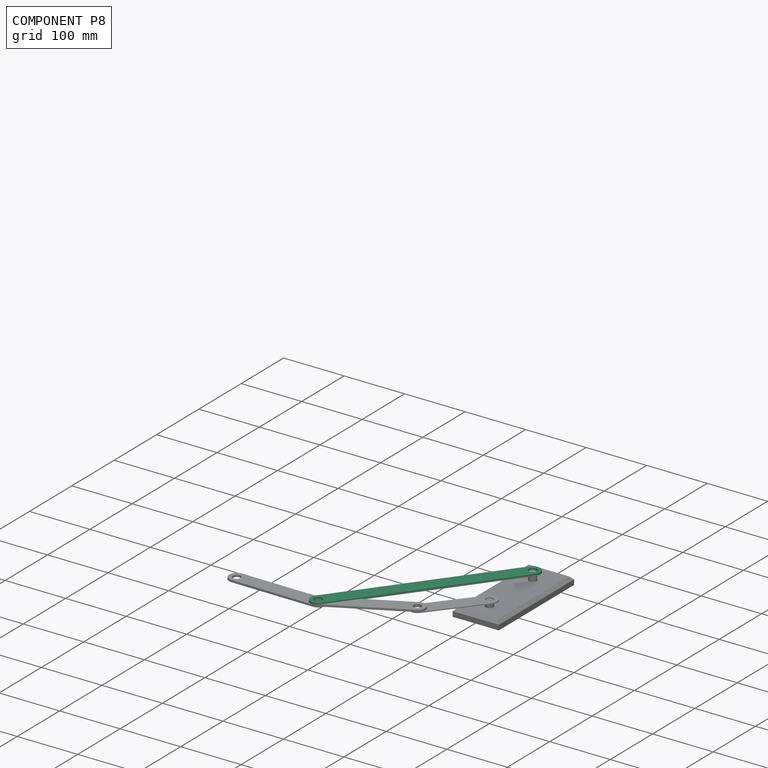
[diagram: component P8 — assembled]
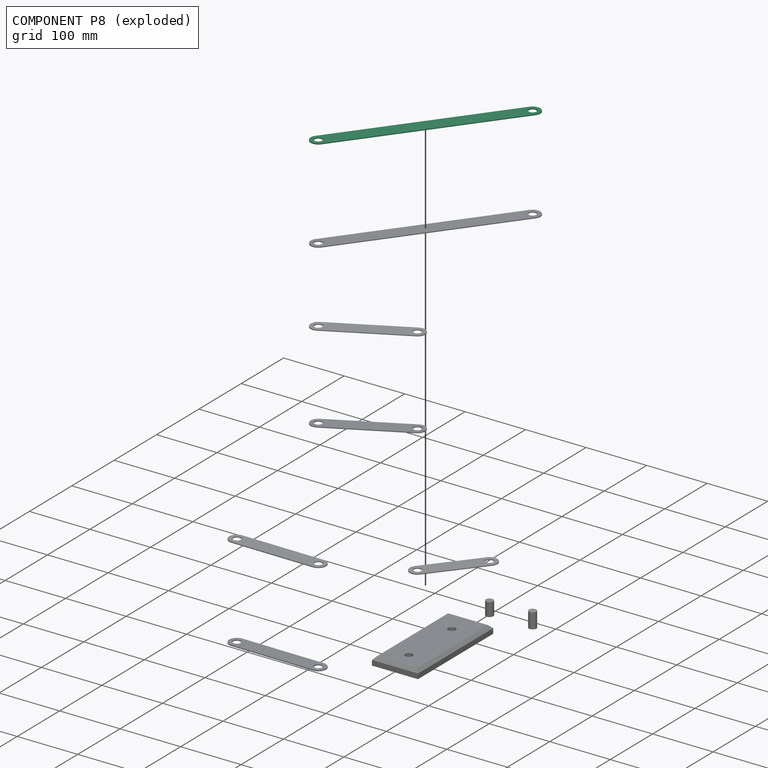
[diagram: component P8 — exploded]
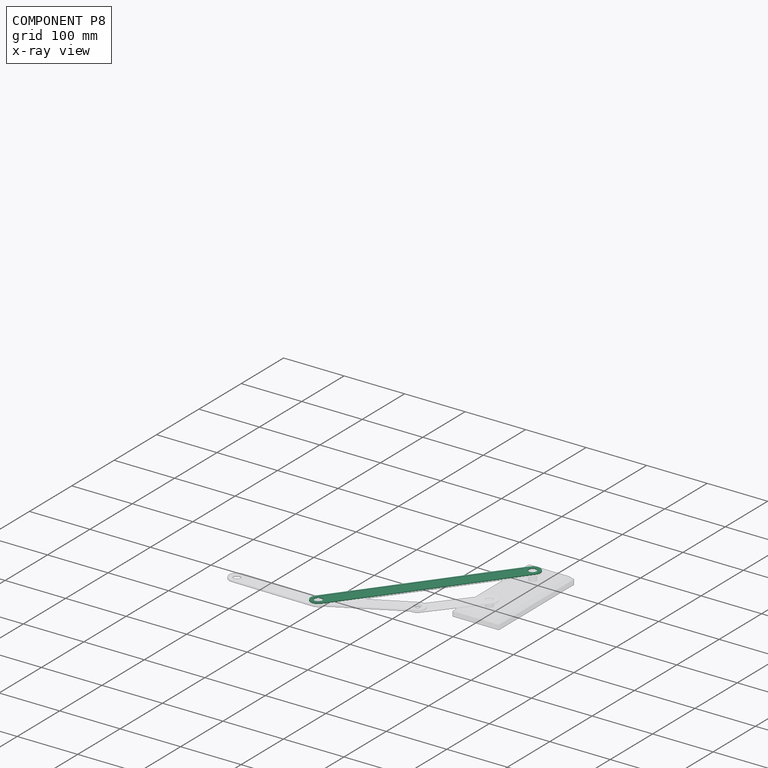
[diagram: component P8 — x-ray view]
COMPONENT P8 — same part as P1 (CADFS 00525707); its construction recipe is shown at P1.
Held by: REVOLUTE mate "Revolute 2" to P1; REVOLUTE mate "Revolute 5" to P0.
PROVENANCE & LICENSES
Assembly (occurrences, transforms, mates, per-part STEP geometry): AutoMate dataset, Zenodo record 7776208, CC0.
Construction recipes: CADFS (HuggingFace VladPyatov/CADFS, CC-BY-4.0, layered over the ABC dataset), FeatureScript reconstruction programs keyed by ABC model id.
Join: ABC meta listings map ABC model id -> Onshape documentId; within a shared document, parts are matched by geometric signature (bounding-box dims + volume at 0.1% relative tolerance, exact B-rep face/solid counts).
Verification: 10 of this assembly's 10 components carry a recipe attachment, and every attachment is mesh-verified: the CADFS STEP and the AutoMate member STEP were compared as meshes in their shared local frame (symmetric sampled-point-to-mesh distance); worst across the 10 attachments: below the mesh-comparison resolution (tessellation chordal tolerance ~0.497 mm) on a 331 mm part.
Renders: orthographic iso camera (az 35 / el 25); the floor grid conveys scale (grid pitch printed in each image; no ruler). In the exploded view each component is displaced by its stored offset vector: the offsets alone carry the explosion direction (mate normal/axis signs are not orientation cues and do not encode it), and separation distances are assigned per mate-chain, not proportionally to assembly-order depth.
